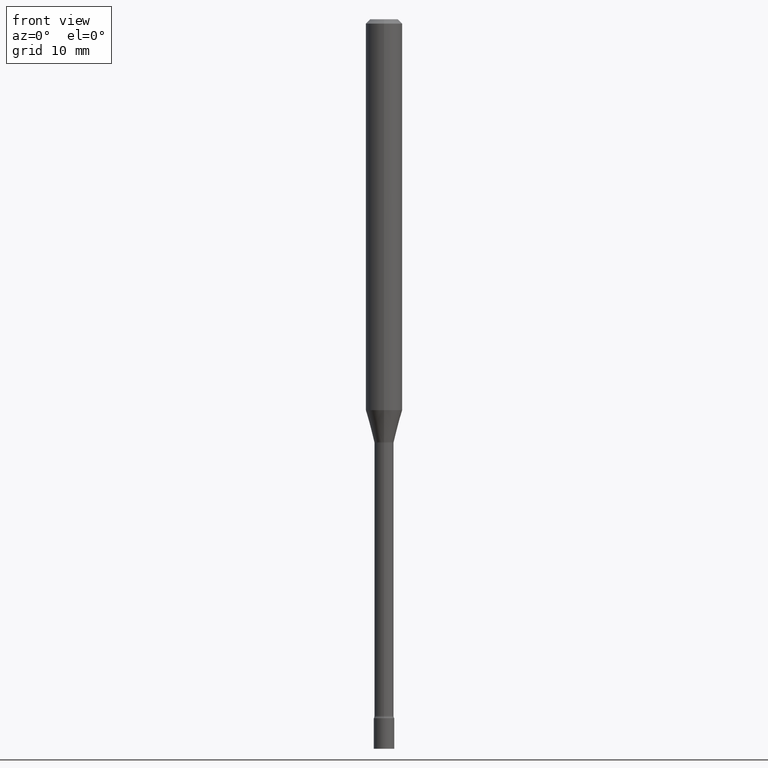
[diagram: clean part render]
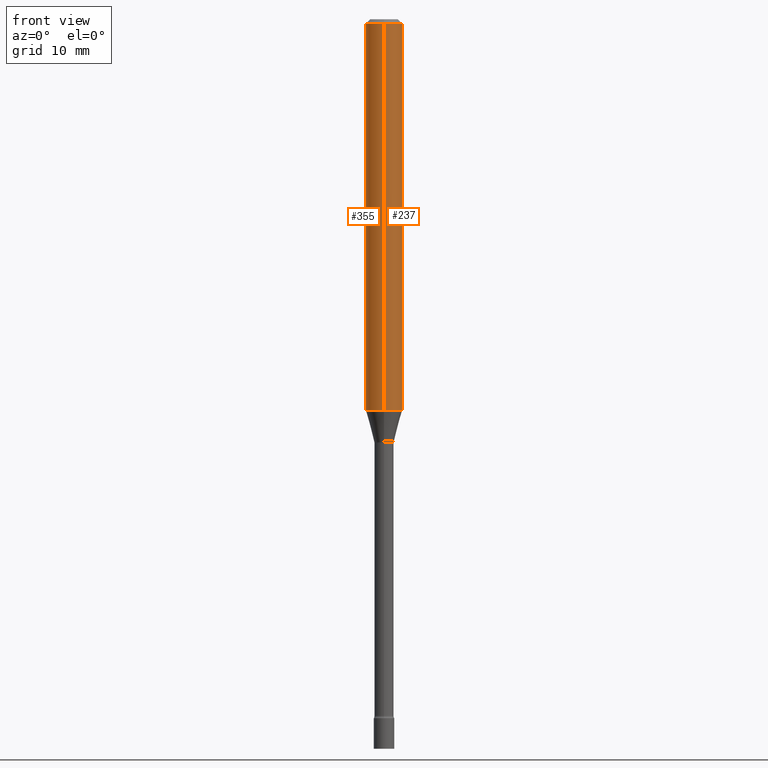
[diagram: same view with one multi-face feature highlighted, each face labeled with its STEP entity id]
A machine part, front view. The highlighted faces form ONE feature: a constant-radius fillet chain: 2 tangent blend faces with common blend radius 1.5875 mm. The faces share edges in the B-rep.
Their STEP definitions:
[1] entity #355 (Cylinder):
#23 = DIRECTION ( 'NONE',  ( -6.982962677686265922E-15, -1.000000000000000000, 4.370956789862821150E-15 ) ) ;
#44 = CARTESIAN_POINT ( 'NONE',  ( 0.000000000000000000, 0.000000000000000000, 0.000000000000000000 ) ) ;
#55 = CARTESIAN_POINT ( 'NONE',  ( 4.440892098500625669E-16, 0.06250000000000000000, -2.182132422528654908E-16 ) ) ;
#66 = VERTEX_POINT ( 'NONE', #443 ) ;
#73 = CARTESIAN_POINT ( 'NONE',  ( 3.668275967695865056E-31, -5.237117814068782255E-17, -0.01500000000000003067 ) ) ;
#83 = CIRCLE ( 'NONE', #91, 0.06250000000000000000 ) ;
#91 = AXIS2_PLACEMENT_3D ( 'NONE', #73, #372, #190 ) ;
#96 = CARTESIAN_POINT ( 'NONE',  ( 4.440892098500949595E-16, 0.06249999999999528849, -1.339531296095961999 ) ) ;
#126 = VECTOR ( 'NONE', #132, 39.37007874015748143 ) ;
#131 = EDGE_CURVE ( 'NONE', #141, #485, #245, .T. ) ;
#132 = DIRECTION ( 'NONE',  ( -2.445517311797238688E-29, 3.491411876045848246E-15, 1.000000000000000000 ) ) ;
#141 = VERTEX_POINT ( 'NONE', #96 ) ;
#174 = EDGE_CURVE ( 'NONE', #485, #439, #293, .T. ) ;
#177 = EDGE_LOOP ( 'NONE', ( #298, #425, #498, #307 ) ) ;
#190 = DIRECTION ( 'NONE',  ( -6.982962677686265922E-15, -1.000000000000000000, 3.483106191921935554E-15 ) ) ;
#207 = CARTESIAN_POINT ( 'NONE',  ( -4.364351673553912750E-16, -0.06250000000000005551, -0.01499999999999981209 ) ) ;
#221 = CARTESIAN_POINT ( 'NONE',  ( 3.275846974296866938E-29, -4.676855475524527085E-15, -1.339531296095961554 ) ) ;
#239 = DIRECTION ( 'NONE',  ( -2.445517311797238408E-29, 3.491411876045847852E-15, 1.000000000000000000 ) ) ;
#241 = VECTOR ( 'NONE', #283, 39.37007874015748143 ) ;
#245 = CIRCLE ( 'NONE', #399, 0.06250000000000000000 ) ;
#250 = LINE ( 'NONE', #55, #241 ) ;
#258 = EDGE_CURVE ( 'NONE', #66, #439, #83, .T. ) ;
#276 = DIRECTION ( 'NONE',  ( -6.982962677686265922E-15, -1.000000000000000000, 3.491411876045847852E-15 ) ) ;
#283 = DIRECTION ( 'NONE',  ( -2.445517311797238688E-29, 3.491411876045848246E-15, 1.000000000000000000 ) ) ;
#289 = DIRECTION ( 'NONE',  ( -2.445517311797238408E-29, 3.491411876045847852E-15, 1.000000000000000000 ) ) ;
#293 = LINE ( 'NONE', #497, #126 ) ;
#298 = ORIENTED_EDGE ( 'NONE', *, *, #448, .F. ) ;
#307 = ORIENTED_EDGE ( 'NONE', *, *, #258, .F. ) ;
#310 = FACE_OUTER_BOUND ( 'NONE', #177, .T. ) ;
#355 = ADVANCED_FACE ( 'NONE', ( #310 ), #357, .T. ) ;
#357 = CYLINDRICAL_SURFACE ( 'NONE', #451, 0.06250000000000000000 ) ;
#364 = CARTESIAN_POINT ( 'NONE',  ( -4.364351673553590303E-16, -0.06250000000000470457, -1.339531296095961332 ) ) ;
#372 = DIRECTION ( 'NONE',  ( -2.445517311797238408E-29, 3.491411876045847852E-15, 1.000000000000000000 ) ) ;
#399 = AXIS2_PLACEMENT_3D ( 'NONE', #221, #289, #23 ) ;
#425 = ORIENTED_EDGE ( 'NONE', *, *, #131, .T. ) ;
#439 = VERTEX_POINT ( 'NONE', #207 ) ;
#443 = CARTESIAN_POINT ( 'NONE',  ( 4.440892098500955511E-16, 0.06249999999999995143, -0.01500000000000024751 ) ) ;
#448 = EDGE_CURVE ( 'NONE', #141, #66, #250, .T. ) ;
#451 = AXIS2_PLACEMENT_3D ( 'NONE', #44, #239, #276 ) ;
#485 = VERTEX_POINT ( 'NONE', #364 ) ;
#497 = CARTESIAN_POINT ( 'NONE',  ( -4.364351673553916201E-16, -0.06250000000000000000, 2.182132422528654908E-16 ) ) ;
#498 = ORIENTED_EDGE ( 'NONE', *, *, #174, .T. ) ;
[2] entity #237 (Cylinder):
#13 = EDGE_CURVE ( 'NONE', #439, #66, #436, .T. ) ;
#31 = CARTESIAN_POINT ( 'NONE',  ( 3.668275967695865056E-31, -5.237117814068782255E-17, -0.01500000000000003067 ) ) ;
#55 = CARTESIAN_POINT ( 'NONE',  ( 4.440892098500625669E-16, 0.06250000000000000000, -2.182132422528654908E-16 ) ) ;
#66 = VERTEX_POINT ( 'NONE', #443 ) ;
#72 = FACE_OUTER_BOUND ( 'NONE', #257, .T. ) ;
#96 = CARTESIAN_POINT ( 'NONE',  ( 4.440892098500949595E-16, 0.06249999999999528849, -1.339531296095961999 ) ) ;
#125 = AXIS2_PLACEMENT_3D ( 'NONE', #31, #294, #311 ) ;
#126 = VECTOR ( 'NONE', #132, 39.37007874015748143 ) ;
#132 = DIRECTION ( 'NONE',  ( -2.445517311797238688E-29, 3.491411876045848246E-15, 1.000000000000000000 ) ) ;
#141 = VERTEX_POINT ( 'NONE', #96 ) ;
#145 = DIRECTION ( 'NONE',  ( -6.982962677686265922E-15, -1.000000000000000000, 3.491411876045847852E-15 ) ) ;
#174 = EDGE_CURVE ( 'NONE', #485, #439, #293, .T. ) ;
#207 = CARTESIAN_POINT ( 'NONE',  ( -4.364351673553912750E-16, -0.06250000000000005551, -0.01499999999999981209 ) ) ;
#215 = CARTESIAN_POINT ( 'NONE',  ( 0.000000000000000000, 0.000000000000000000, 0.000000000000000000 ) ) ;
#237 = ADVANCED_FACE ( 'NONE', ( #72 ), #346, .T. ) ;
#241 = VECTOR ( 'NONE', #283, 39.37007874015748143 ) ;
#250 = LINE ( 'NONE', #55, #241 ) ;
#257 = EDGE_LOOP ( 'NONE', ( #361, #396, #449, #349 ) ) ;
#273 = DIRECTION ( 'NONE',  ( -6.982962677686265922E-15, -1.000000000000000000, 4.370956789862821150E-15 ) ) ;
#280 = EDGE_CURVE ( 'NONE', #485, #141, #493, .T. ) ;
#283 = DIRECTION ( 'NONE',  ( -2.445517311797238688E-29, 3.491411876045848246E-15, 1.000000000000000000 ) ) ;
#293 = LINE ( 'NONE', #497, #126 ) ;
#294 = DIRECTION ( 'NONE',  ( -2.445517311797238408E-29, 3.491411876045847852E-15, 1.000000000000000000 ) ) ;
#311 = DIRECTION ( 'NONE',  ( -6.982962677686265922E-15, -1.000000000000000000, 3.483106191921935554E-15 ) ) ;
#346 = CYLINDRICAL_SURFACE ( 'NONE', #347, 0.06250000000000000000 ) ;
#347 = AXIS2_PLACEMENT_3D ( 'NONE', #215, #512, #145 ) ;
#349 = ORIENTED_EDGE ( 'NONE', *, *, #174, .F. ) ;
#361 = ORIENTED_EDGE ( 'NONE', *, *, #280, .T. ) ;
#364 = CARTESIAN_POINT ( 'NONE',  ( -4.364351673553590303E-16, -0.06250000000000470457, -1.339531296095961332 ) ) ;
#380 = AXIS2_PLACEMENT_3D ( 'NONE', #445, #390, #273 ) ;
#390 = DIRECTION ( 'NONE',  ( -2.445517311797238408E-29, 3.491411876045847852E-15, 1.000000000000000000 ) ) ;
#396 = ORIENTED_EDGE ( 'NONE', *, *, #448, .T. ) ;
#436 = CIRCLE ( 'NONE', #125, 0.06250000000000000000 ) ;
#439 = VERTEX_POINT ( 'NONE', #207 ) ;
#443 = CARTESIAN_POINT ( 'NONE',  ( 4.440892098500955511E-16, 0.06249999999999995143, -0.01500000000000024751 ) ) ;
#445 = CARTESIAN_POINT ( 'NONE',  ( 3.275846974296866938E-29, -4.676855475524527085E-15, -1.339531296095961554 ) ) ;
#448 = EDGE_CURVE ( 'NONE', #141, #66, #250, .T. ) ;
#449 = ORIENTED_EDGE ( 'NONE', *, *, #13, .F. ) ;
#485 = VERTEX_POINT ( 'NONE', #364 ) ;
#493 = CIRCLE ( 'NONE', #380, 0.06250000000000000000 ) ;
#497 = CARTESIAN_POINT ( 'NONE',  ( -4.364351673553916201E-16, -0.06250000000000000000, 2.182132422528654908E-16 ) ) ;
#512 = DIRECTION ( 'NONE',  ( -2.445517311797238408E-29, 3.491411876045847852E-15, 1.000000000000000000 ) ) ;